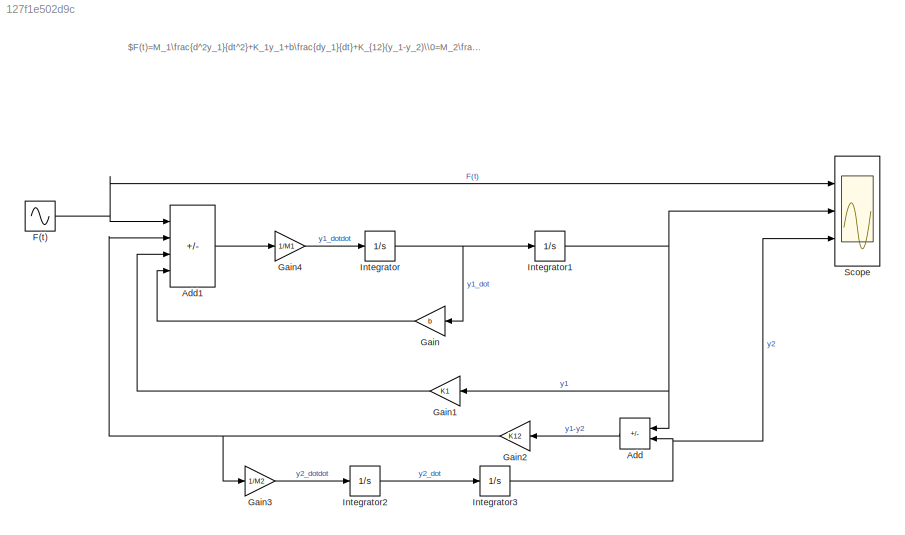
MODEL slx_127f1e502d9c
KIND model
CONFIG AbsTol = auto
CONFIG EnableMultiTasking = off
CONFIG FixedStep = auto
CONFIG MaxStep = 0.01
CONFIG MinStep = auto
CONFIG RelTol = 1e-3
CONFIG SampleTimeConstraint = Unconstrained
CONFIG SolverName = VariableStepAuto
CONFIG StartTime = 0.0
CONFIG StopTime = 10
WORKSPACE source: mxarray member
WORKSPACE K1: Simulink.Parameter (value not decoded)
WORKSPACE K12: Simulink.Parameter (value not decoded)
WORKSPACE M1: Simulink.Parameter (value not decoded)
WORKSPACE M2: Simulink.Parameter (value not decoded)
WORKSPACE b: Simulink.Parameter (value not decoded)
BLOCK [Sum] Add
  IconShape = rectangular
  Inputs = +-
  Ports = [2, 1]
BLOCK [Sum] Add1
  IconShape = rectangular
  Inputs = +---
  Ports = [4, 1]
BLOCK [Sin] F(t)
  Amplitude = 2
  Frequency = 10
  Ports = [0, 1]
  SampleTime = 0
BLOCK [Gain] Gain
  Gain = b
  NameLocation = top
BLOCK [Gain] Gain1
  Gain = K1
  NameLocation = top
BLOCK [Gain] Gain2
  Gain = K12
BLOCK [Gain] Gain3
  Gain = 1/M2
BLOCK [Gain] Gain4
  Gain = 1/M1
BLOCK [Integrator] Integrator
  Ports = [1, 1]
BLOCK [Integrator] Integrator1
  Ports = [1, 1]
BLOCK [Integrator] Integrator2
  Ports = [1, 1]
BLOCK [Integrator] Integrator3
  Ports = [1, 1]
BLOCK [Scope] Scope
  Floating = off
  NumInputPorts = 3
  Ports = [3]
  ScopeSpecificationString = Simulink.scopes.TimeScopeBlockCfg('CurrentConfiguration', extmgr.ConfigurationSet(extmgr.Configuration('Core','General UI',true),extmgr.Configuration('Core','Source UI',true),extmgr.Configuration('Sources','WiredSimulink',true),extmgr.Configuration('Visuals','Time Domain',true,'SerializedDisplays',{struct('MinYLimReal','-2.49998','MaxYLimReal','2.49999','YLabelReal','','MinYLimMag','0.00000','MaxY...<+2737ch>
ANNOTATION (root): $F(t)=M_1\frac{d^2y_1}{dt^2}+K_1y_1+b\frac{dy_1}{dt}+K_{12}(y_1-y_2)\\0=M_2\frac{d^2y_2}{dt^2}+K_{12}(y_2-y_1)$
LINE Add1:1 -> Gain4:1
LINE Add:1 -> Gain2:1
NET F(t):1 -> Add1:1, Scope:1
LINE Gain1:1 -> Add1:3
NET Gain2:1 -> Add1:2, Gain3:1
LINE Gain3:1 -> Integrator2:1
LINE Gain4:1 -> Integrator:1
LINE Gain:1 -> Add1:4
NET Integrator1:1 -> Add:1, Gain1:1, Scope:2
LINE Integrator2:1 -> Integrator3:1
NET Integrator3:1 -> Add:2, Scope:3
NET Integrator:1 -> Gain:1, Integrator1:1
note: NET lines group one-source signal fan-out (src -> all destinations, sorted); 1:1 wires keep LINE
